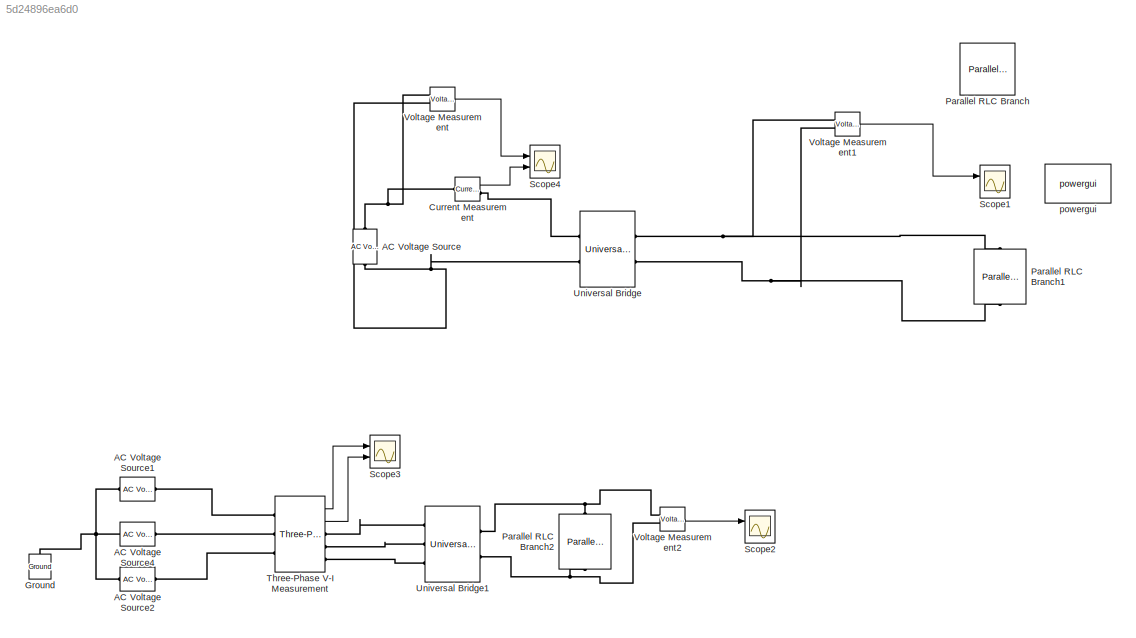
MODEL slx_5d24896ea6d0
KIND model
BLOCK [Reference] AC Voltage Source  REF=powerlib/Electrical
Sources/AC Voltage Source
  Amplitude = 100
  Frequency = 50
  Measurements = None
  Phase = 0
  Ports = [0, 0, 0, 0, 0, 1, 1]
  SampleTime = 0
  SourceBlock = powerlib/Electrical\nSources/AC Voltage Source
  SourceType = AC Voltage Source
BLOCK [Reference] AC Voltage Source1  REF=powerlib/Electrical
Sources/AC Voltage Source
  Amplitude = 100
  Frequency = 50
  Measurements = None
  Phase = 0
  Ports = [0, 0, 0, 0, 0, 1, 1]
  SampleTime = 0
  SourceBlock = powerlib/Electrical\nSources/AC Voltage Source
  SourceType = AC Voltage Source
BLOCK [Reference] AC Voltage Source2  REF=powerlib/Electrical
Sources/AC Voltage Source
  Amplitude = 100
  Frequency = 50
  Measurements = None
  Phase = -120
  Ports = [0, 0, 0, 0, 0, 1, 1]
  SampleTime = 0
  SourceBlock = powerlib/Electrical\nSources/AC Voltage Source
  SourceType = AC Voltage Source
BLOCK [Reference] AC Voltage Source4  REF=powerlib/Electrical
Sources/AC Voltage Source
  Amplitude = 100
  Frequency = 50
  Measurements = None
  Phase = 120
  Ports = [0, 0, 0, 0, 0, 1, 1]
  SampleTime = 0
  SourceBlock = powerlib/Electrical\nSources/AC Voltage Source
  SourceType = AC Voltage Source
BLOCK [Reference] Current Measurement  REF=powerlib/Measurements/Current Measurement
  OutputType = Complex
  PSBequivalent = 0
  PhasorSimulation = off
  Ports = [0, 1, 0, 0, 0, 1, 1]
  SourceBlock = powerlib/Measurements/Current Measurement
  SourceType = Current Measurement
  UserDataPersistent = on
BLOCK [Reference] Ground  REF=powerlib/Elements/Ground
  LConnTagsString = a
  Ports = [0, 0, 0, 0, 0, 1]
  SourceBlock = powerlib/Elements/Ground
  SourceType = Ground
BLOCK [Reference] Parallel RLC Branch  REF=powerlib/Elements/Parallel RLC Branch
  AttributesFormatString = \n
  BranchType = RLC
  Capacitance = 1e-6
  Inductance = 1e-3
  InitialCurrent = 0
  InitialVoltage = 0
  LConnTagsString = a
  Measurements = None
  Ports = [0, 0, 0, 0, 0, 1, 1]
  RConnTagsString = __new0
  Resistance = 1
  SetiL0 = off
  Setx0 = off
  SourceBlock = powerlib/Elements/Parallel RLC Branch
  SourceType = Parallel RLC Branch
BLOCK [Reference] Parallel RLC Branch1  REF=powerlib/Elements/Parallel RLC Branch
  AttributesFormatString = \n
  BranchType = RC
  Capacitance = 5e-4
  Inductance = 1e-3
  InitialCurrent = 0
  InitialVoltage = 0
  LConnTagsString = a
  Measurements = None
  Ports = [0, 0, 0, 0, 0, 1, 1]
  RConnTagsString = __new0
  Resistance = 100
  SetiL0 = off
  Setx0 = off
  SourceBlock = powerlib/Elements/Parallel RLC Branch
  SourceType = Parallel RLC Branch
BLOCK [Reference] Parallel RLC Branch2  REF=powerlib/Elements/Parallel RLC Branch
  AttributesFormatString = \n
  BranchType = RC
  Capacitance = 1e-4
  Inductance = 1e-3
  InitialCurrent = 0
  InitialVoltage = 0
  LConnTagsString = a
  Measurements = None
  Ports = [0, 0, 0, 0, 0, 1, 1]
  RConnTagsString = __new0
  Resistance = 10
  SetiL0 = off
  Setx0 = off
  SourceBlock = powerlib/Elements/Parallel RLC Branch
  SourceType = Parallel RLC Branch
BLOCK [Scope] Scope1
  Floating = off
  LimitDataPoints = off
  NumInputPorts = 2
  Ports = [2]
  ShowLegends = off
  YMax = 525~1
  YMin = 475~0
  ZoomMode = xonly
BLOCK [Scope] Scope2
  Floating = off
  LimitDataPoints = off
  NumInputPorts = 2
  Ports = [2]
  SaveName = ScopeData1
  ShowLegends = off
  YMax = 525~1
  YMin = 475~0
  ZoomMode = xonly
BLOCK [Scope] Scope3
  Floating = off
  LimitDataPoints = off
  NumInputPorts = 2
  Ports = [2]
  SaveName = ScopeData2
  ShowLegends = off
  YMax = 525~1
  YMin = 475~0
  ZoomMode = yonly
BLOCK [Scope] Scope4
  Floating = off
  LimitDataPoints = off
  NumInputPorts = 2
  Ports = [2]
  SaveName = ScopeData4
  ShowLegends = off
  YMax = 525~1
  YMin = 475~0
  ZoomMode = yonly
BLOCK [Reference] Three-Phase V-I Measurement  REF=powerlib/Measurements/Three-Phase
V-I Measurement
  CurrentMeasurement = yes
  Ipu = off
  LabelI = Iabc
  LabelV = Vabc
  OutputType = Complex
  PSBequivalent = 0
  Pbase = 100e6
  PhasorSimulation = off
  Ports = [0, 2, 0, 0, 0, 3, 3]
  SetLabelI = off
  SetLabelV = off
  SourceBlock = powerlib/Measurements/Three-Phase\nV-I Measurement
  SourceType = Three-Phase VI Measurement
  Vbase = 500e3
  VoltageMeasurement = phase-to-ground
  Vpu = off
  VpuLL = off
BLOCK [Reference] Universal Bridge  REF=powerlib/Power
Electronics/Universal Bridge
  Arms = 2
  Device = Diodes
  ForwardVoltage = 0
  ForwardVoltages = [  0  0  ]
  GTOparameters = [ 10e-6 , 20e-6 ]
  IGBTparameters = [ 1e-6 , 2e-6 ]
  Lon = 0
  Measurements = None
  Measurements_2 = None
  Ports = [0, 0, 0, 0, 0, 2, 2]
  Ron = 1e-3
  SnubberCapacitance = inf
  SnubberResistance = 1e5
  SourceBlock = powerlib/Power\nElectronics/Universal Bridge
  SourceType = Universal Bridge
  converterType = Rectifier
BLOCK [Reference] Universal Bridge1  REF=powerlib/Power
Electronics/Universal Bridge
  Arms = 3
  Device = Diodes
  ForwardVoltage = 0
  ForwardVoltages = [  0  0  ]
  GTOparameters = [ 10e-6 , 20e-6 ]
  IGBTparameters = [ 1e-6 , 2e-6 ]
  Lon = 0
  Measurements = None
  Measurements_2 = None
  Ports = [0, 0, 0, 0, 0, 3, 2]
  Ron = 1e-3
  SnubberCapacitance = inf
  SnubberResistance = 1e5
  SourceBlock = powerlib/Power\nElectronics/Universal Bridge
  SourceType = Universal Bridge
  converterType = Rectifier
BLOCK [Reference] Voltage Measurement  REF=powerlib/Measurements/Voltage Measurement
  OutputType = Complex
  PSBequivalent = 0
  PhasorSimulation = off
  Ports = [0, 1, 0, 0, 0, 2]
  SourceBlock = powerlib/Measurements/Voltage Measurement
  SourceType = Voltage Measurement
  UserDataPersistent = on
BLOCK [Reference] Voltage Measurement1  REF=powerlib/Measurements/Voltage Measurement
  OutputType = Complex
  PSBequivalent = 0
  PhasorSimulation = off
  Ports = [0, 1, 0, 0, 0, 2]
  SourceBlock = powerlib/Measurements/Voltage Measurement
  SourceType = Voltage Measurement
  UserDataPersistent = on
BLOCK [Reference] Voltage Measurement2  REF=powerlib/Measurements/Voltage Measurement
  OutputType = Complex
  PSBequivalent = 0
  PhasorSimulation = off
  Ports = [0, 1, 0, 0, 0, 2]
  SourceBlock = powerlib/Measurements/Voltage Measurement
  SourceType = Voltage Measurement
  UserDataPersistent = on
BLOCK [Reference] powergui  REF=powerlib/powergui
  DisableRonSwitches = off
  DisableSnubberDevices = off
  DisableVfSwitches = off
  DisplayEquations = off
  DisplayStyle = 1
  EnableUseOfTLC = off
  ErrMax = 1e-4
  Frange = [0:2:500]
  FreqAxis = off
  FunctionMessages = off
  HookPort = off
  Interpol = off
  Iterations = 50
  MaxFrequency = 1000
  Pbase = 100e6
  Ports = []
  Priority = 1
  ResistiveCurrentMeasurement = off
  RestoreLinks = warning
  RmsSteady = 1
  SPID = off
  SampleTime = 5e-6
  ShowGrid = off
  SolverType = Tustin
  SourceBlock = powerlib/powergui
  SourceType = PSB option menu block
  StartTime = 0.0
  SwTol = 0
  Ts = 0
  UnitsV = kV
  UnitsW = MW
  UserDataPersistent = on
  Xlog = on
  Ylog = off
  ZoomFFT = off
  cycles = 1
  display = off
  echomessages = off
  frequency = 60
  frequencyindice = 0
  frequencyindicesteady = 1
  fundamental = 60
  methode = off
  save = off
  structure = 0
  variable = ZData
  x0status = blocks
LINE Current Measurement:1 -> Scope4:2
LINE Three-Phase V-I Measurement:1 -> Scope3:1
LINE Three-Phase V-I Measurement:2 -> Scope3:2
LINE Voltage Measurement1:1 -> Scope1:1
LINE Voltage Measurement2:1 -> Scope2:1
LINE Voltage Measurement:1 -> Scope4:1
PNET net1: AC Voltage Source1:LConn1 -- AC Voltage Source2:LConn1 -- AC Voltage Source4:LConn1 -- Ground:LConn1
PLINE AC Voltage Source1:RConn1 -- Three-Phase V-I Measurement:LConn1
PLINE AC Voltage Source2:RConn1 -- Three-Phase V-I Measurement:LConn3
PLINE AC Voltage Source4:RConn1 -- Three-Phase V-I Measurement:LConn2
PNET net2: AC Voltage Source:LConn1 -- Universal Bridge:LConn2 -- Voltage Measurement:LConn2
PNET net3: AC Voltage Source:RConn1 -- Current Measurement:LConn1 -- Voltage Measurement:LConn1
PLINE Current Measurement:RConn1 -- Universal Bridge:LConn1
PNET net4: Parallel RLC Branch1:LConn1 -- Universal Bridge:RConn1 -- Voltage Measurement1:LConn1
PNET net5: Parallel RLC Branch1:RConn1 -- Universal Bridge:RConn2 -- Voltage Measurement1:LConn2
PNET net6: Parallel RLC Branch2:LConn1 -- Universal Bridge1:RConn1 -- Voltage Measurement2:LConn1
PNET net7: Parallel RLC Branch2:RConn1 -- Universal Bridge1:RConn2 -- Voltage Measurement2:LConn2
PLINE Three-Phase V-I Measurement:RConn1 -- Universal Bridge1:LConn1
PLINE Three-Phase V-I Measurement:RConn2 -- Universal Bridge1:LConn2
PLINE Three-Phase V-I Measurement:RConn3 -- Universal Bridge1:LConn3
note: PNET lines group multi-terminal physical nets as a canonical sorted terminal list (undirected conserving connections); 2-terminal nets keep the pairwise PLINE form
